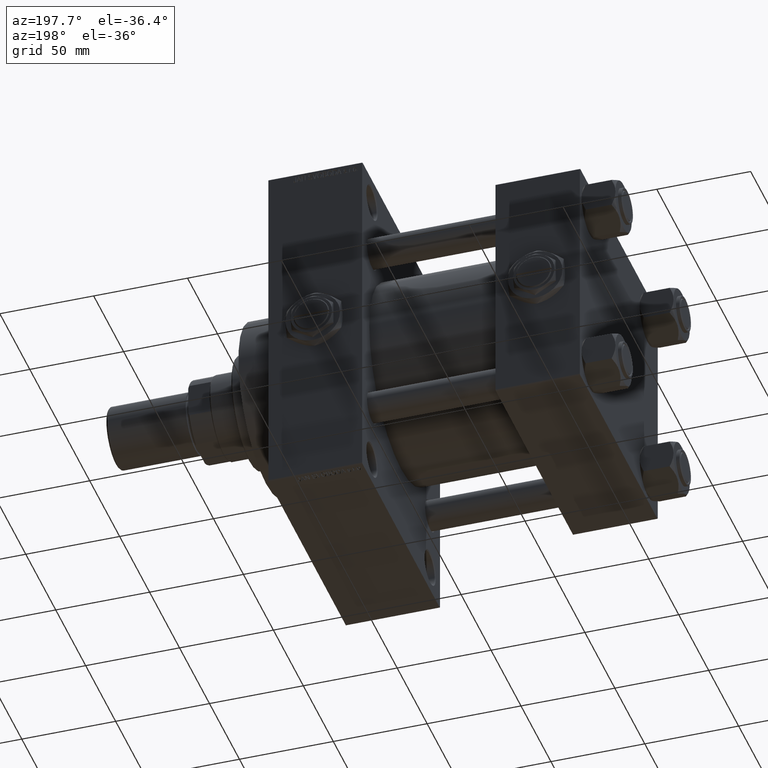
[diagram: clean part render]
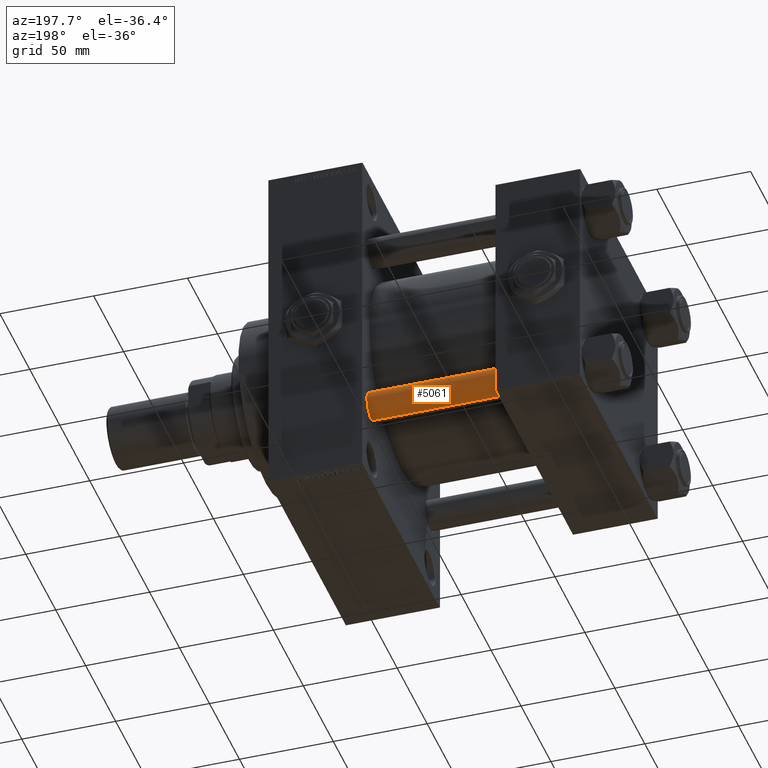
[diagram: same view with one face highlighted and labeled with its STEP entity id]
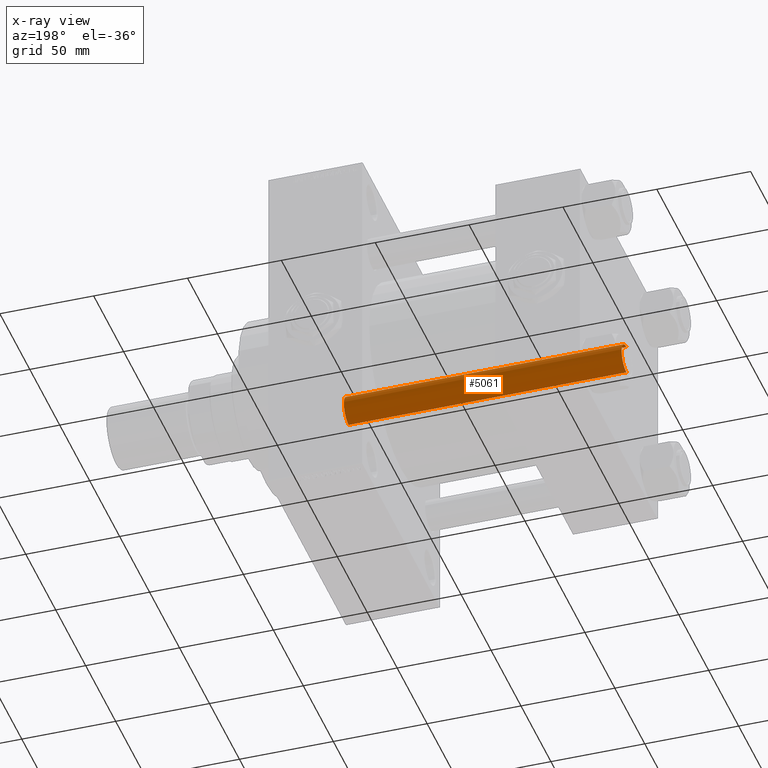
[diagram: x-ray of the same camera — body ghosted, the highlighted face saturated]
A machine part, auxiliary view. The second image highlights one B-rep face of the part: STEP entity #5061.
The next image is the same camera in x-ray: the body ghosted, the highlighted face saturated — about 0% of this face is hidden behind the body in this view.
In plain terms, the highlighted cylindrical surface (edge-blend (fillet) strip) has radius 8 mm, axis along (-1, -0, 0).
Its self-contained STEP definition (entity closure, byte-faithful):
#838 = CARTESIAN_POINT ( 'NONE',  ( -8.000000000000000000, 0.000000000000000000, 0.5000000000000281997 ) ) ;
#1556 = AXIS2_PLACEMENT_3D ( 'NONE', #15213, #30738, #30232 ) ;
#1599 = CIRCLE ( 'NONE', #30013, 8.000000000000000000 ) ;
#2991 = VERTEX_POINT ( 'NONE', #3998 ) ;
#3300 = EDGE_CURVE ( 'NONE', #2991, #3904, #1599, .T. ) ;
#3456 = CARTESIAN_POINT ( 'NONE',  ( 0.000000000000000000, 0.000000000000000000, 148.5000000000000000 ) ) ;
#3904 = VERTEX_POINT ( 'NONE', #838 ) ;
#3998 = CARTESIAN_POINT ( 'NONE',  ( 8.000000000000000000, 9.797174393178825657E-16, 0.5000000000000281997 ) ) ;
#5061 = ADVANCED_FACE ( 'NONE', ( #38357 ), #18521, .T. ) ;
#12099 = CIRCLE ( 'NONE', #25882, 8.000000000000000000 ) ;
#12777 = DIRECTION ( 'NONE',  ( -0.000000000000000000, -0.000000000000000000, -1.000000000000000000 ) ) ;
#13801 = EDGE_CURVE ( 'NONE', #27970, #25921, #12099, .T. ) ;
#14158 = EDGE_CURVE ( 'NONE', #25921, #2991, #16592, .T. ) ;
#15213 = CARTESIAN_POINT ( 'NONE',  ( 0.000000000000000000, 0.000000000000000000, 149.0000000000000000 ) ) ;
#16592 = LINE ( 'NONE', #17087, #25044 ) ;
#17087 = CARTESIAN_POINT ( 'NONE',  ( 8.000000000000000000, 9.797174393178825657E-16, 149.0000000000000000 ) ) ;
#18521 = CYLINDRICAL_SURFACE ( 'NONE', #1556, 8.000000000000000000 ) ;
#22995 = VECTOR ( 'NONE', #29643, 1000.000000000000000 ) ;
#25044 = VECTOR ( 'NONE', #12777, 1000.000000000000000 ) ;
#25882 = AXIS2_PLACEMENT_3D ( 'NONE', #3456, #30156, #45637 ) ;
#25921 = VERTEX_POINT ( 'NONE', #40975 ) ;
#27970 = VERTEX_POINT ( 'NONE', #32518 ) ;
#28451 = ORIENTED_EDGE ( 'NONE', *, *, #14158, .T. ) ;
#28569 = ORIENTED_EDGE ( 'NONE', *, *, #37765, .F. ) ;
#29643 = DIRECTION ( 'NONE',  ( -0.000000000000000000, -0.000000000000000000, -1.000000000000000000 ) ) ;
#29888 = CARTESIAN_POINT ( 'NONE',  ( -8.000000000000000000, 0.000000000000000000, 149.0000000000000000 ) ) ;
#30013 = AXIS2_PLACEMENT_3D ( 'NONE', #50178, #42816, #34457 ) ;
#30156 = DIRECTION ( 'NONE',  ( 0.000000000000000000, 0.000000000000000000, -1.000000000000000000 ) ) ;
#30232 = DIRECTION ( 'NONE',  ( -1.000000000000000000, 0.000000000000000000, 0.000000000000000000 ) ) ;
#30738 = DIRECTION ( 'NONE',  ( -0.000000000000000000, -0.000000000000000000, -1.000000000000000000 ) ) ;
#32518 = CARTESIAN_POINT ( 'NONE',  ( -8.000000000000000000, 0.000000000000000000, 148.5000000000000000 ) ) ;
#34457 = DIRECTION ( 'NONE',  ( 1.000000000000000000, 0.000000000000000000, 0.000000000000000000 ) ) ;
#37765 = EDGE_CURVE ( 'NONE', #27970, #3904, #41066, .T. ) ;
#38357 = FACE_OUTER_BOUND ( 'NONE', #49089, .T. ) ;
#40975 = CARTESIAN_POINT ( 'NONE',  ( 8.000000000000000000, 9.797174393178825657E-16, 148.5000000000000000 ) ) ;
#41066 = LINE ( 'NONE', #29888, #22995 ) ;
#42816 = DIRECTION ( 'NONE',  ( -0.000000000000000000, -0.000000000000000000, 1.000000000000000000 ) ) ;
#45033 = ORIENTED_EDGE ( 'NONE', *, *, #3300, .T. ) ;
#45637 = DIRECTION ( 'NONE',  ( 1.000000000000000000, 0.000000000000000000, 0.000000000000000000 ) ) ;
#48420 = ORIENTED_EDGE ( 'NONE', *, *, #13801, .T. ) ;
#49089 = EDGE_LOOP ( 'NONE', ( #48420, #28451, #45033, #28569 ) ) ;
#50178 = CARTESIAN_POINT ( 'NONE',  ( 0.000000000000000000, 0.000000000000000000, 0.5000000000000281997 ) ) ;